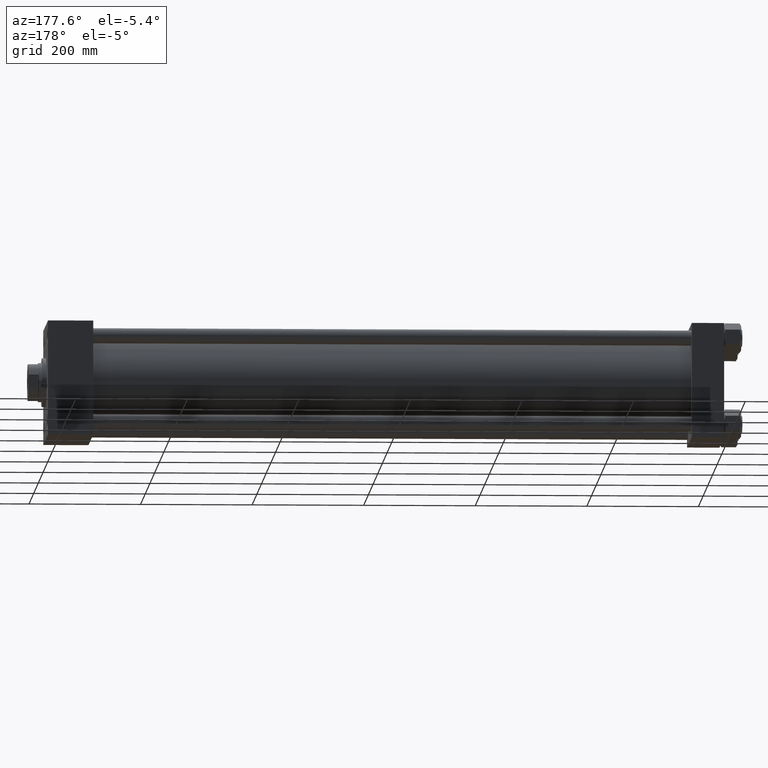
[diagram: clean part render]
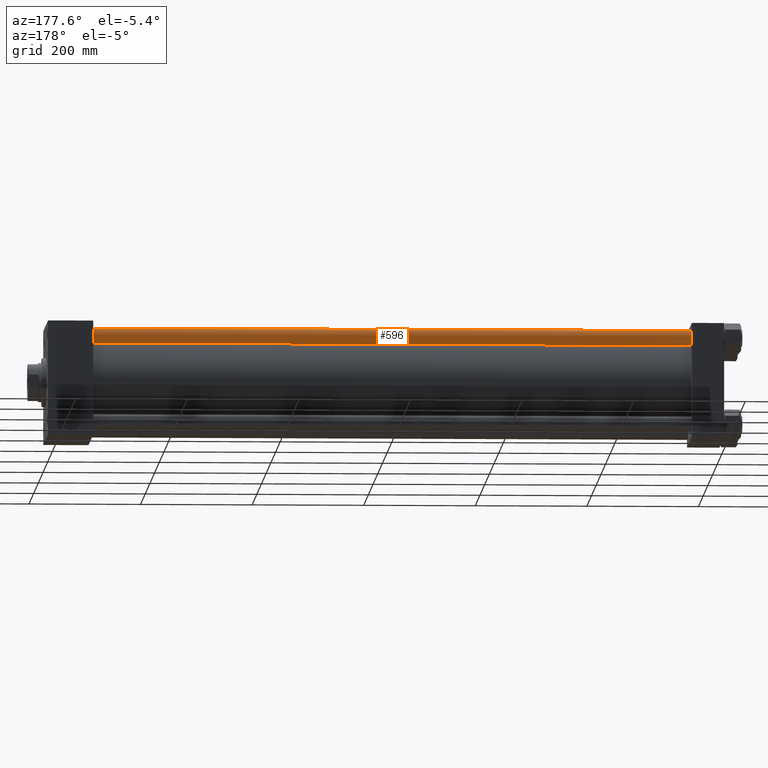
[diagram: same view with one face highlighted and labeled with its STEP entity id]
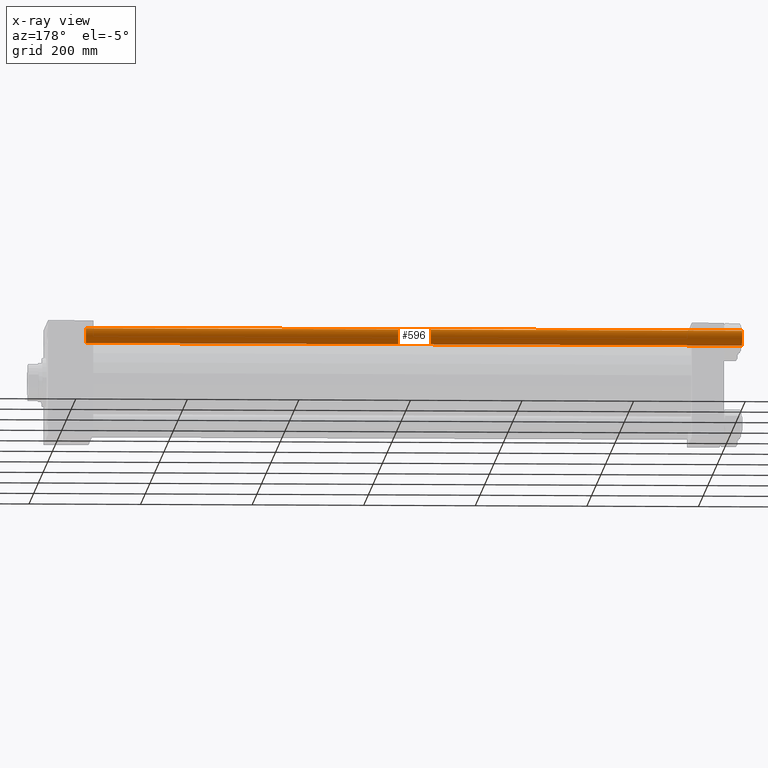
[diagram: x-ray of the same camera — body ghosted, the highlighted face saturated]
A machine part, auxiliary view. The second image highlights one B-rep face of the part: STEP entity #596.
The next image is the same camera in x-ray: the body ghosted, the highlighted face saturated — about 0% of this face is hidden behind the body in this view.
In plain terms, the highlighted cylindrical surface (edge-blend (fillet) strip) has radius 13.5 mm, axis along (-1, 0, 0).
Its self-contained STEP definition (entity closure, byte-faithful):
#596 = ADVANCED_FACE ( 'NONE', ( #49032 ), #25459, .T. ) ;
#2197 = ORIENTED_EDGE ( 'NONE', *, *, #34213, .T. ) ;
#2663 = CARTESIAN_POINT ( 'NONE',  ( 13.50000000000000000, 1.653273178848926867E-15, 1177.000000000000000 ) ) ;
#3812 = EDGE_CURVE ( 'NONE', #27215, #26257, #10266, .T. ) ;
#6181 = CARTESIAN_POINT ( 'NONE',  ( 0.000000000000000000, 0.000000000000000000, 1177.000000000000000 ) ) ;
#8241 = CIRCLE ( 'NONE', #37725, 13.50000000000000000 ) ;
#9440 = CARTESIAN_POINT ( 'NONE',  ( -13.50000000000000000, 0.000000000000000000, 1176.499999999999773 ) ) ;
#10080 = DIRECTION ( 'NONE',  ( -0.000000000000000000, -0.000000000000000000, 1.000000000000000000 ) ) ;
#10266 = LINE ( 'NONE', #29283, #40693 ) ;
#11083 = CIRCLE ( 'NONE', #20910, 13.50000000000000000 ) ;
#12973 = CARTESIAN_POINT ( 'NONE',  ( 13.50000000000000000, 1.653273178848926867E-15, 0.5000000000001669775 ) ) ;
#14028 = ORIENTED_EDGE ( 'NONE', *, *, #16133, .T. ) ;
#14357 = AXIS2_PLACEMENT_3D ( 'NONE', #6181, #29819, #36484 ) ;
#15573 = ORIENTED_EDGE ( 'NONE', *, *, #3812, .F. ) ;
#16133 = EDGE_CURVE ( 'NONE', #27215, #45621, #8241, .T. ) ;
#20910 = AXIS2_PLACEMENT_3D ( 'NONE', #28839, #10080, #25744 ) ;
#21811 = CARTESIAN_POINT ( 'NONE',  ( -13.50000000000000000, 0.000000000000000000, 0.5000000000001669775 ) ) ;
#24049 = VERTEX_POINT ( 'NONE', #12973 ) ;
#25459 = CYLINDRICAL_SURFACE ( 'NONE', #14357, 13.50000000000000000 ) ;
#25744 = DIRECTION ( 'NONE',  ( 1.000000000000000000, 0.000000000000000000, 0.000000000000000000 ) ) ;
#26257 = VERTEX_POINT ( 'NONE', #21811 ) ;
#27215 = VERTEX_POINT ( 'NONE', #9440 ) ;
#27540 = DIRECTION ( 'NONE',  ( 0.000000000000000000, 0.000000000000000000, -1.000000000000000000 ) ) ;
#28839 = CARTESIAN_POINT ( 'NONE',  ( 0.000000000000000000, 0.000000000000000000, 0.5000000000001669775 ) ) ;
#29283 = CARTESIAN_POINT ( 'NONE',  ( -13.50000000000000000, 0.000000000000000000, 1177.000000000000000 ) ) ;
#29528 = DIRECTION ( 'NONE',  ( -0.000000000000000000, -0.000000000000000000, -1.000000000000000000 ) ) ;
#29819 = DIRECTION ( 'NONE',  ( -0.000000000000000000, -0.000000000000000000, -1.000000000000000000 ) ) ;
#30887 = DIRECTION ( 'NONE',  ( 1.000000000000000000, 0.000000000000000000, 0.000000000000000000 ) ) ;
#34213 = EDGE_CURVE ( 'NONE', #45621, #24049, #38565, .T. ) ;
#34836 = VECTOR ( 'NONE', #49860, 1000.000000000000000 ) ;
#35479 = CARTESIAN_POINT ( 'NONE',  ( 0.000000000000000000, 0.000000000000000000, 1176.499999999999773 ) ) ;
#36063 = EDGE_CURVE ( 'NONE', #24049, #26257, #11083, .T. ) ;
#36484 = DIRECTION ( 'NONE',  ( -1.000000000000000000, 0.000000000000000000, 0.000000000000000000 ) ) ;
#37725 = AXIS2_PLACEMENT_3D ( 'NONE', #35479, #27540, #30887 ) ;
#38565 = LINE ( 'NONE', #2663, #34836 ) ;
#40693 = VECTOR ( 'NONE', #29528, 1000.000000000000000 ) ;
#40854 = ORIENTED_EDGE ( 'NONE', *, *, #36063, .T. ) ;
#45314 = CARTESIAN_POINT ( 'NONE',  ( 13.50000000000000000, 1.653273178848926867E-15, 1176.499999999999773 ) ) ;
#45621 = VERTEX_POINT ( 'NONE', #45314 ) ;
#47821 = EDGE_LOOP ( 'NONE', ( #14028, #2197, #40854, #15573 ) ) ;
#49032 = FACE_OUTER_BOUND ( 'NONE', #47821, .T. ) ;
#49860 = DIRECTION ( 'NONE',  ( -0.000000000000000000, -0.000000000000000000, -1.000000000000000000 ) ) ;